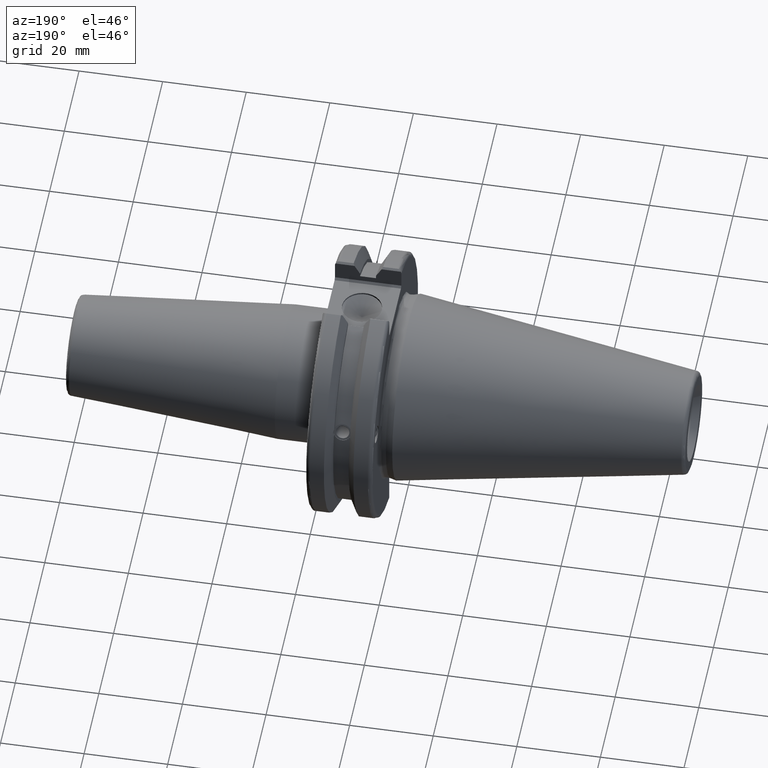
[diagram: clean part render]
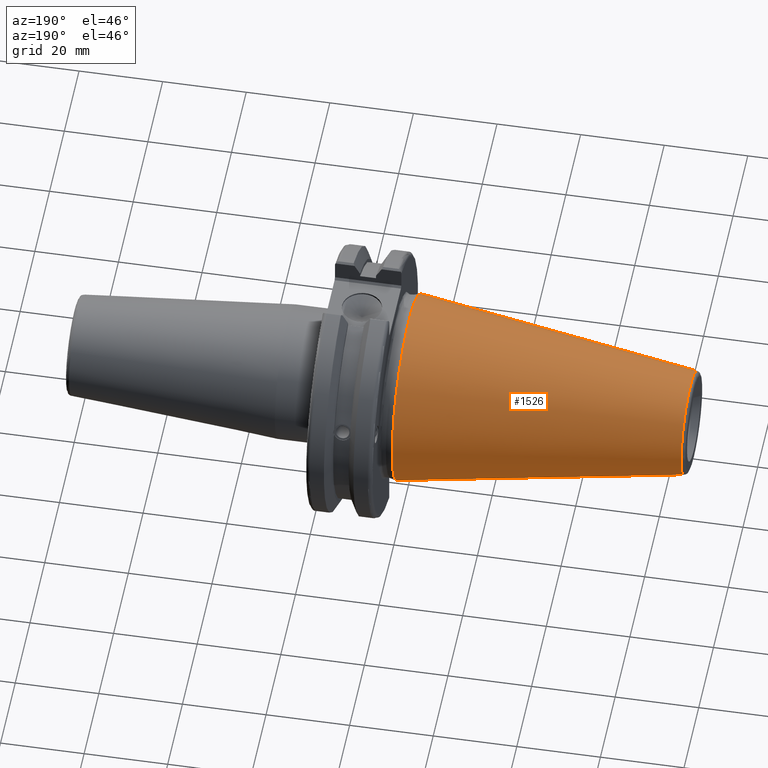
[diagram: same view with one face highlighted and labeled with its STEP entity id]
A machine part, auxiliary view. The second image highlights one B-rep face of the part: STEP entity #1526.
In plain terms, the highlighted conical surface has half-angle 8.297 deg.
Its self-contained STEP definition (entity closure, byte-faithful):
#179=LINE('',#2904,#271);
#271=VECTOR('',#2108,17.2484375);
#297=CONICAL_SURFACE('',#1715,17.2484375,0.144812498238939);
#413=FACE_OUTER_BOUND('',#513,.T.);
#513=EDGE_LOOP('',(#1328,#1329,#1330,#1331,#1332));
#601=CIRCLE('',#1709,12.3966635780937);
#602=CIRCLE('',#1710,12.3966635780937);
#606=CIRCLE('',#1716,22.225);
#755=VERTEX_POINT('',#2891);
#756=VERTEX_POINT('',#2892);
#759=VERTEX_POINT('',#2902);
#961=EDGE_CURVE('',#755,#756,#601,.T.);
#962=EDGE_CURVE('',#756,#755,#602,.T.);
#966=EDGE_CURVE('',#759,#759,#606,.T.);
#967=EDGE_CURVE('',#759,#756,#179,.T.);
#1328=ORIENTED_EDGE('',*,*,#966,.F.);
#1329=ORIENTED_EDGE('',*,*,#967,.T.);
#1330=ORIENTED_EDGE('',*,*,#961,.F.);
#1331=ORIENTED_EDGE('',*,*,#962,.F.);
#1332=ORIENTED_EDGE('',*,*,#967,.F.);
#1526=ADVANCED_FACE('',(#413),#297,.T.);
#1709=AXIS2_PLACEMENT_3D('',#2893,#2092,#2093);
#1710=AXIS2_PLACEMENT_3D('',#2894,#2094,#2095);
#1715=AXIS2_PLACEMENT_3D('',#2901,#2104,#2105);
#1716=AXIS2_PLACEMENT_3D('',#2903,#2106,#2107);
#2092=DIRECTION('center_axis',(-1.,0.,0.));
#2093=DIRECTION('ref_axis',(0.,-1.,3.06161699786838E-17));
#2094=DIRECTION('center_axis',(-1.,0.,0.));
#2095=DIRECTION('ref_axis',(0.,-1.,3.06161699786838E-17));
#2104=DIRECTION('center_axis',(1.,0.,0.));
#2105=DIRECTION('ref_axis',(0.,1.,0.));
#2106=DIRECTION('center_axis',(1.,0.,0.));
#2107=DIRECTION('ref_axis',(0.,0.,-1.));
#2108=DIRECTION('',(-0.989532981063282,0.144306893071729,1.76724974695192E-17));
#2891=CARTESIAN_POINT('',(-67.3943068930717,-1.5181534371019E-15,12.3966635780937));
#2892=CARTESIAN_POINT('',(-67.3943068930718,-12.3966635780937,-1.5181534371019E-15));
#2893=CARTESIAN_POINT('Origin',(-67.3943068930717,0.,-1.89769179637738E-15));
#2894=CARTESIAN_POINT('Origin',(-67.3943068930717,0.,-1.89769179637738E-15));
#2901=CARTESIAN_POINT('Origin',(-34.125,0.,0.));
#2902=CARTESIAN_POINT('',(0.,-22.225,-2.72177751110499E-15));
#2903=CARTESIAN_POINT('Origin',(0.,0.,0.));
#2904=CARTESIAN_POINT('',(-34.125,-17.2484375,-2.11232437746682E-15));